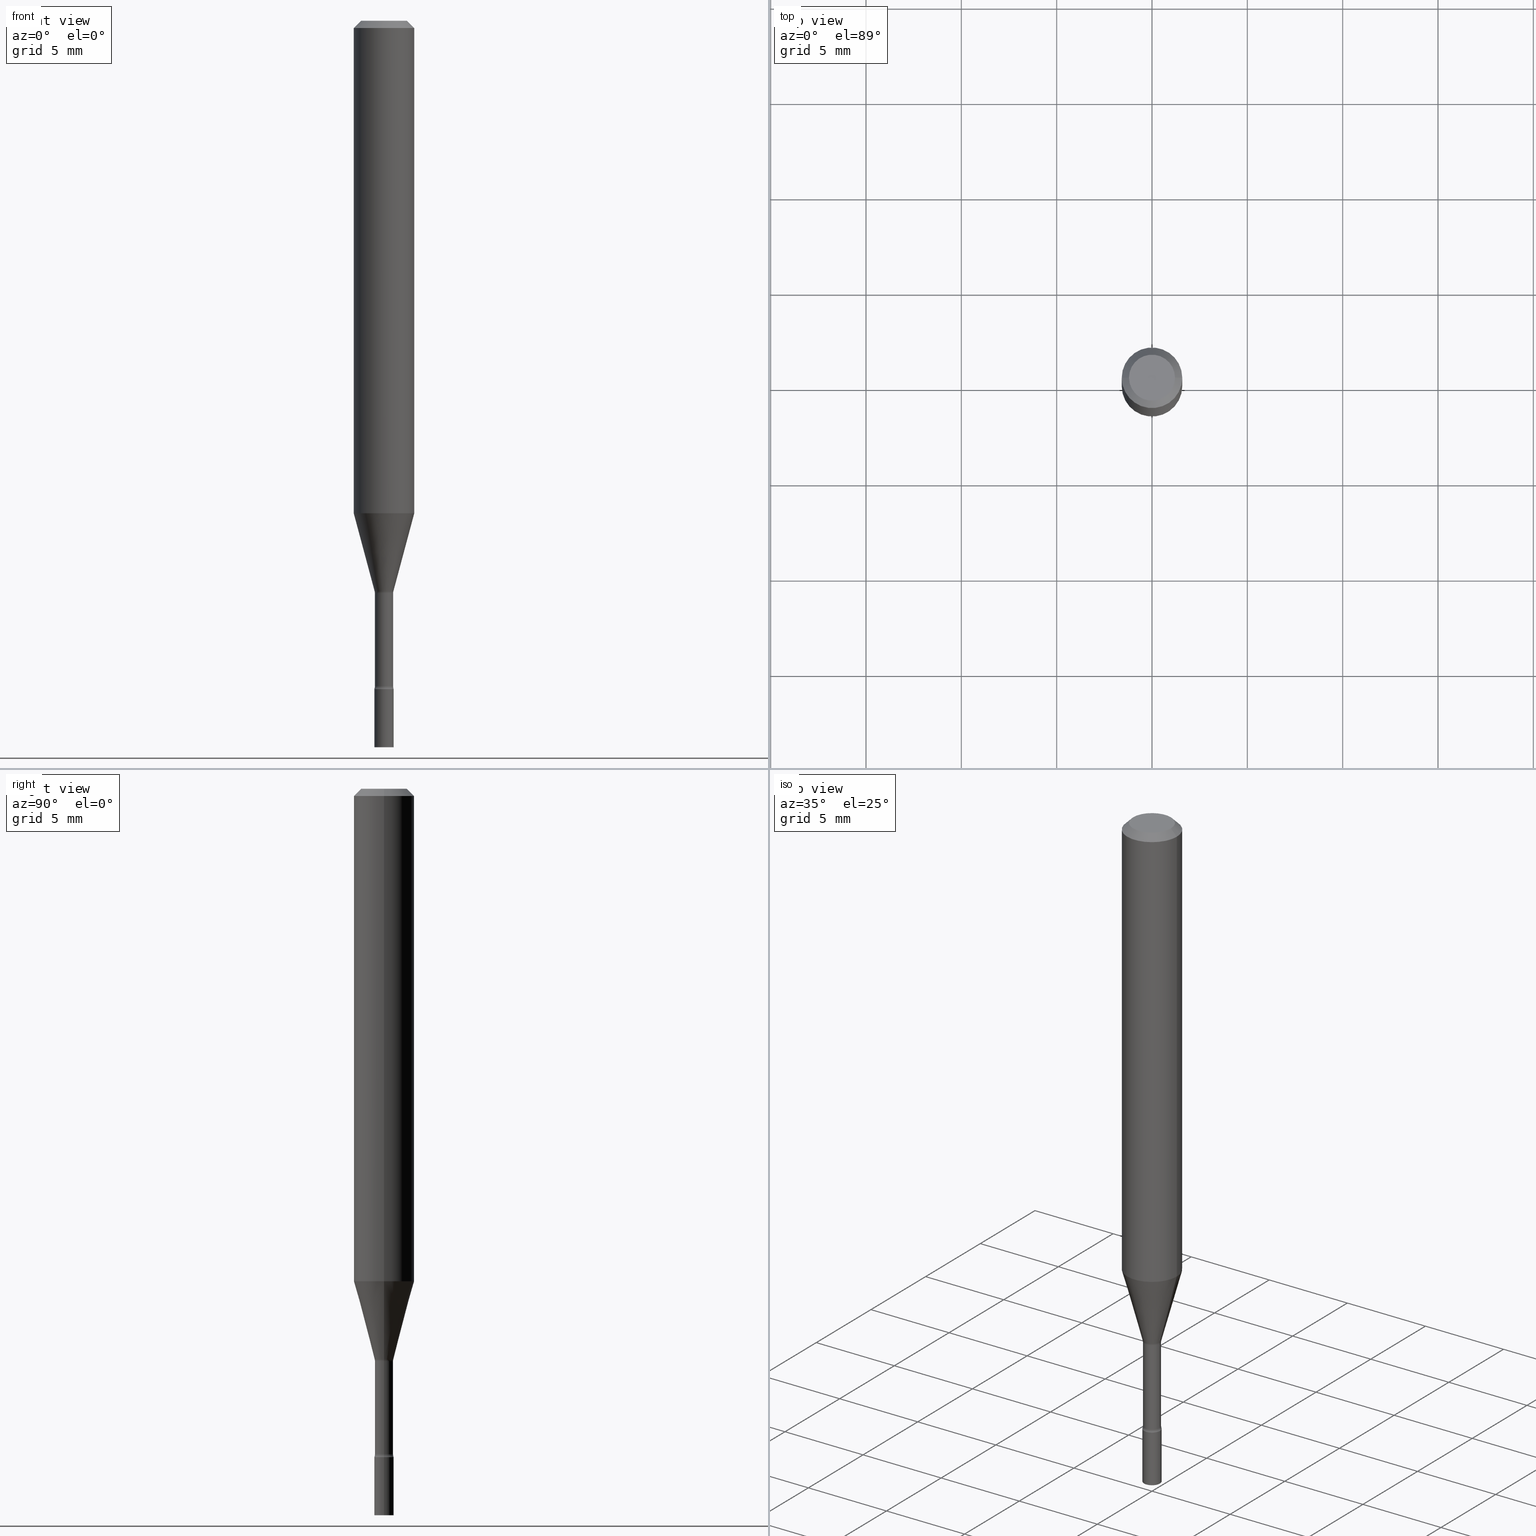
[diagram: canonical four-view strip — front | top / right | iso, engineering-drawing reading convention]
A machine part, canonical four-view strip (front | top / right | iso — engineering-drawing reading convention). The complete STEP part file that produces these views, byte-faithful:
ISO-10303-21;
HEADER;
FILE_DESCRIPTION (( 'STEP AP203' ),
    '1' );
FILE_NAME ('09367.STEP',
    '2024-03-08T23:24:10',
    ( '' ),
    ( '' ),
    'SwSTEP 2.0',
    'SolidWorks 2023',
    '' );
FILE_SCHEMA (( 'CONFIG_CONTROL_DESIGN' ));
ENDSEC;

DATA;
#1 = CIRCLE ( 'NONE', #288, 0.06250000000000000000 ) ;
#2 = DIRECTION ( 'NONE',  ( 1.000000000000000000, -6.982962677686266711E-15, 4.876176775795935793E-29 ) ) ;
#3 = ORIENTED_EDGE ( 'NONE', *, *, #30, .F. ) ;
#4 = CARTESIAN_POINT ( 'NONE',  ( 7.070806723891919892E-46, -1.009523804376275185E-31, -2.891391092786900313E-17 ) ) ;
#5 = ORIENTED_EDGE ( 'NONE', *, *, #302, .F. ) ;
#6 = CARTESIAN_POINT ( 'NONE',  ( -0.02000000000000000042, 1.421085471520200401E-16, -9.837870180509812545E-31 ) ) ;
#7 = ORIENTED_EDGE ( 'NONE', *, *, #395, .F. ) ;
#8 = CIRCLE ( 'NONE', #176, 0.01931111260566394788 ) ;
#9 = EDGE_LOOP ( 'NONE', ( #22, #372, #327, #79 ) ) ;
#10 = CARTESIAN_POINT ( 'NONE',  ( 3.374746952535488593E-29, -4.818244247603541543E-15, -1.380000000000000115 ) ) ;
#11 = ORIENTED_EDGE ( 'NONE', *, *, #88, .F. ) ;
#12 = DIRECTION ( 'NONE',  ( 1.000000000000000000, 0.000000000000000000, 0.000000000000000000 ) ) ;
#13 = DIRECTION ( 'NONE',  ( 2.445468806185136597E-29, -3.491481338843145583E-15, -1.000000000000000000 ) ) ;
#14 = CARTESIAN_POINT ( 'NONE',  ( 0.000000000000000000, 0.000000000000000000, 0.000000000000000000 ) ) ;
#15 = CC_DESIGN_PERSON_AND_ORGANIZATION_ASSIGNMENT ( #340, #259, ( #247 ) ) ;
#16 = DIRECTION ( 'NONE',  ( 1.000000000000000000, -6.982962677686267499E-15, 4.883557194083112901E-29 ) ) ;
#17 = CIRCLE ( 'NONE', #252, 0.02000000000000000042 ) ;
#18 = AXIS2_PLACEMENT_3D ( 'NONE', #437, #121, #155 ) ;
#19 = CARTESIAN_POINT ( 'NONE',  ( 2.486820166796024310E-29, -3.550520122549371978E-15, -1.016909379709240557 ) ) ;
#20 = CALENDAR_DATE ( 2024, 8, 3 ) ;
#21 = DIRECTION ( 'NONE',  ( 1.000000000000000000, -6.982962677686265922E-15, 4.876176775795935793E-29 ) ) ;
#22 = ORIENTED_EDGE ( 'NONE', *, *, #86, .T. ) ;
#23 = DATE_AND_TIME ( #103, #128 ) ;
#24 = CARTESIAN_POINT ( 'NONE',  ( -0.06250000000000000000, 3.840629472727443437E-16, -0.01500000000000003067 ) ) ;
#25 = AXIS2_PLACEMENT_3D ( 'NONE', #300, #222, #385 ) ;
#26 = LOCAL_TIME ( 18, 24, 10.00000000000000000, #460 ) ;
#27 = CARTESIAN_POINT ( 'NONE',  ( 2.880988463921384240E-29, -4.113287985421300432E-15, -1.178092501787273427 ) ) ;
#28 = DIRECTION ( 'NONE',  ( 1.000000000000000000, -6.982962677686258822E-15, 4.883557194083109538E-29 ) ) ;
#29 = EDGE_CURVE ( 'NONE', #240, #361, #310, .T. ) ;
#30 = EDGE_CURVE ( 'NONE', #38, #234, #160, .T. ) ;
#31 = DIRECTION ( 'NONE',  ( 1.000000000000000000, -6.982962677686258822E-15, 4.883557194083109538E-29 ) ) ;
#32 = ADVANCED_FACE ( 'NONE', ( #366 ), #89, .F. ) ;
#33 = DIRECTION ( 'NONE',  ( -2.445468806185136597E-29, 3.491481338843145583E-15, 1.000000000000000000 ) ) ;
#34 = VERTEX_POINT ( 'NONE', #284 ) ;
#35 = DIRECTION ( 'NONE',  ( -2.445468806185136597E-29, 3.491481338843145583E-15, 1.000000000000000000 ) ) ;
#36 = VERTEX_POINT ( 'NONE', #291 ) ;
#37 = CARTESIAN_POINT ( 'NONE',  ( -0.03380000000000000365, -3.886679468726075206E-15, -1.181974787463810905 ) ) ;
#38 = VERTEX_POINT ( 'NONE', #162 ) ;
#39 = AXIS2_PLACEMENT_3D ( 'NONE', #492, #96, #129 ) ;
#40 = CIRCLE ( 'NONE', #465, 0.02000000000000000042 ) ;
#41 = CARTESIAN_POINT ( 'NONE',  ( -0.02000000000000000042, -4.885624580782109696E-15, -1.500000000000000222 ) ) ;
#42 = ORIENTED_EDGE ( 'NONE', *, *, #187, .F. ) ;
#43 = APPLICATION_PROTOCOL_DEFINITION ( 'international standard', 'config_control_design', 1994, #416 ) ;
#44 = ADVANCED_FACE ( 'NONE', ( #56 ), #169, .F. ) ;
#45 = VERTEX_POINT ( 'NONE', #87 ) ;
#46 = MANIFOLD_SOLID_BREP ( 'Body-Move/Copy2[2]', #472 ) ;
#47 = CARTESIAN_POINT ( 'NONE',  ( 0.000000000000000000, 0.000000000000000000, 0.000000000000000000 ) ) ;
#48 = AXIS2_PLACEMENT_3D ( 'NONE', #27, #132, #293 ) ;
#49 = DIRECTION ( 'NONE',  ( 1.000000000000000000, -6.982962677686284065E-15, 0.000000000000000000 ) ) ;
#50 = DIRECTION ( 'NONE',  ( 1.000000000000000000, -6.982962677686274599E-15, 0.000000000000000000 ) ) ;
#51 = CARTESIAN_POINT ( 'NONE',  ( 2.890482472440056423E-29, -4.126842913412989440E-15, -1.181974787463810905 ) ) ;
#52 = CC_DESIGN_PERSON_AND_ORGANIZATION_ASSIGNMENT ( #204, #493, ( #275 ) ) ;
#53 = DIRECTION ( 'NONE',  ( -2.445468806185136597E-29, 3.491481338843145583E-15, 1.000000000000000000 ) ) ;
#54 = ORIENTED_EDGE ( 'NONE', *, *, #448, .T. ) ;
#55 = EDGE_CURVE ( 'NONE', #196, #266, #520, .T. ) ;
#56 = FACE_OUTER_BOUND ( 'NONE', #110, .T. ) ;
#57 = CIRCLE ( 'NONE', #72, 0.06250000000000000000 ) ;
#58 = CC_DESIGN_APPROVAL ( #177, ( #184 ) ) ;
#59 = CYLINDRICAL_SURFACE ( 'NONE', #362, 0.02000000000000000042 ) ;
#60 = PERSON_AND_ORGANIZATION_ROLE ( 'creator' ) ;
#61 = CARTESIAN_POINT ( 'NONE',  ( 3.360370590718575552E-29, -4.797718613059662933E-15, -1.374121224617320003 ) ) ;
#62 = DIRECTION ( 'NONE',  ( -2.445468806185136877E-29, 3.491481338843145188E-15, 1.000000000000000000 ) ) ;
#63 = CONICAL_SURFACE ( 'NONE', #48, 0.01931111260566394788, 0.2617993877991500740 ) ;
#64 = CIRCLE ( 'NONE', #203, 0.01499999999999998557 ) ;
#65 = ADVANCED_FACE ( 'NONE', ( #450 ), #205, .T. ) ;
#66 = DATE_TIME_ROLE ( 'classification_date' ) ;
#67 = CARTESIAN_POINT ( 'NONE',  ( -0.06250000000000000000, -1.357356961465947110E-15, -0.01500000000000003067 ) ) ;
#68 = CARTESIAN_POINT ( 'NONE',  ( 2.880988463921384240E-29, -4.113287985421300432E-15, -1.178092501787273427 ) ) ;
#69 = PRODUCT_DEFINITION_SHAPE ( 'NONE', 'NONE',  #358 ) ;
#70 = CARTESIAN_POINT ( 'NONE',  ( 0.06250000000000000000, -4.811533449433680977E-16, -0.01500000000000003067 ) ) ;
#71 = EDGE_LOOP ( 'NONE', ( #410, #152 ) ) ;
#72 = AXIS2_PLACEMENT_3D ( 'NONE', #507, #298, #135 ) ;
#73 = VECTOR ( 'NONE', #369, 39.37007874015748143 ) ;
#74 = DIRECTION ( 'NONE',  ( -2.445468806185136597E-29, 3.491481338843145583E-15, 1.000000000000000000 ) ) ;
#75 = ORIENTED_EDGE ( 'NONE', *, *, #173, .T. ) ;
#76 = CARTESIAN_POINT ( 'NONE',  ( -0.01880000000000000421, -4.328698728913427470E-15, -1.181974787463810905 ) ) ;
#77 = EDGE_LOOP ( 'NONE', ( #359, #477, #54, #200 ) ) ;
#78 = CARTESIAN_POINT ( 'NONE',  ( 3.360370590718575552E-29, -4.797718613059662933E-15, -1.374121224617320003 ) ) ;
#79 = ORIENTED_EDGE ( 'NONE', *, *, #514, .F. ) ;
#80 = VECTOR ( 'NONE', #62, 39.37007874015748143 ) ;
#81 = DIRECTION ( 'NONE',  ( -6.982962677686266711E-15, -1.000000000000000000, 3.491481338843145583E-15 ) ) ;
#82 = ORIENTED_EDGE ( 'NONE', *, *, #351, .T. ) ;
#83 = APPROVAL ( #381, 'UNSPECIFIED' ) ;
#84 =( NAMED_UNIT ( * ) SI_UNIT ( $, .STERADIAN. ) SOLID_ANGLE_UNIT ( ) );
#85 = FACE_OUTER_BOUND ( 'NONE', #320, .T. ) ;
#86 = EDGE_CURVE ( 'NONE', #104, #234, #328, .T. ) ;
#87 = CARTESIAN_POINT ( 'NONE',  ( 0.01880000000000000768, -4.928998311400164734E-15, -1.374121224617320003 ) ) ;
#88 = EDGE_CURVE ( 'NONE', #394, #104, #287, .T. ) ;
#89 = TOROIDAL_SURFACE ( 'NONE', #378, 0.03380000000000000365, 0.01499999999999998557 ) ;
#90 = VECTOR ( 'NONE', #439, 39.37007874015747433 ) ;
#91 = CIRCLE ( 'NONE', #202, 0.04749999999999999362 ) ;
#92 = EDGE_LOOP ( 'NONE', ( #392, #117, #489, #11 ) ) ;
#93 = CIRCLE ( 'NONE', #382, 0.01499999999999998557 ) ;
#94 = DIRECTION ( 'NONE',  ( 1.000000000000000000, -6.982962677686267499E-15, 4.876176775795935232E-29 ) ) ;
#95 = EDGE_LOOP ( 'NONE', ( #75, #347, #138, #251 ) ) ;
#96 = DIRECTION ( 'NONE',  ( 2.438088387897960049E-29, -3.491481338843145188E-15, -1.000000000000000000 ) ) ;
#97 = FACE_OUTER_BOUND ( 'NONE', #316, .T. ) ;
#98 = AXIS2_PLACEMENT_3D ( 'NONE', #116, #273, #31 ) ;
#99 = VERTEX_POINT ( 'NONE', #281 ) ;
#100 = APPROVAL_DATE_TIME ( #23, #177 ) ;
#101 = DIRECTION ( 'NONE',  ( 1.000000000000000000, -6.982962677686265922E-15, 4.876176775795935793E-29 ) ) ;
#102 = CARTESIAN_POINT ( 'NONE',  ( -0.06250000000000000000, -3.106430912699309362E-15, -1.016909379709240557 ) ) ;
#103 = CALENDAR_DATE ( 2024, 8, 3 ) ;
#104 = VERTEX_POINT ( 'NONE', #441 ) ;
#105 = VECTOR ( 'NONE', #225, 39.37007874015748143 ) ;
#106 = CYLINDRICAL_SURFACE ( 'NONE', #294, 0.01880000000000000768 ) ;
#107 = FACE_OUTER_BOUND ( 'NONE', #119, .T. ) ;
#108 = ORIENTED_EDGE ( 'NONE', *, *, #411, .T. ) ;
#109 = DIRECTION ( 'NONE',  ( 1.000000000000000000, -6.982962677686266711E-15, 0.000000000000000000 ) ) ;
#110 = EDGE_LOOP ( 'NONE', ( #325, #482 ) ) ;
#111 = CIRCLE ( 'NONE', #246, 0.01500000000000001853 ) ;
#112 = AXIS2_PLACEMENT_3D ( 'NONE', #249, #401, #12 ) ;
#113 = DIRECTION ( 'NONE',  ( 1.000000000000000000, -6.982962677686273021E-15, 0.000000000000000000 ) ) ;
#114 = ADVANCED_FACE ( 'NONE', ( #85 ), #453, .T. ) ;
#115 = ORIENTED_EDGE ( 'NONE', *, *, #258, .F. ) ;
#116 = CARTESIAN_POINT ( 'NONE',  ( 3.360370590718576112E-29, -4.797718613059664510E-15, -1.374121224617320447 ) ) ;
#117 = ORIENTED_EDGE ( 'NONE', *, *, #30, .T. ) ;
#118 = CARTESIAN_POINT ( 'NONE',  ( 2.890482472440056423E-29, -4.126842913412989440E-15, -1.181974787463810905 ) ) ;
#119 = EDGE_LOOP ( 'NONE', ( #375, #156, #422, #154 ) ) ;
#120 = AXIS2_PLACEMENT_3D ( 'NONE', #47, #262, #261 ) ;
#121 = DIRECTION ( 'NONE',  ( 2.438088387897960049E-29, -3.491481338843145188E-15, -1.000000000000000000 ) ) ;
#122 = DIRECTION ( 'NONE',  ( 0.2588190451025213501, 1.565188264969621968E-15, 0.9659258262890682012 ) ) ;
#123 = ADVANCED_FACE ( 'NONE', ( #242 ), #402, .T. ) ;
#124 = LINE ( 'NONE', #285, #150 ) ;
#125 = CARTESIAN_POINT ( 'NONE',  ( 2.890482472440056423E-29, -4.126842913412989440E-15, -1.181974787463810905 ) ) ;
#126 = DIRECTION ( 'NONE',  ( 1.000000000000000000, -6.982962677686270655E-15, 0.000000000000000000 ) ) ;
#127 = CIRCLE ( 'NONE', #303, 0.02000000000000000042 ) ;
#128 = LOCAL_TIME ( 18, 24, 10.00000000000000000, #210 ) ;
#129 = DIRECTION ( 'NONE',  ( -1.000000000000000000, 6.982962677686265922E-15, -4.876176775795935793E-29 ) ) ;
#130 = CARTESIAN_POINT ( 'NONE',  ( 0.03380000000000000365, -4.362867051918784611E-15, -1.181974787463810905 ) ) ;
#131 = DIRECTION ( 'NONE',  ( 1.000000000000000000, -6.982962677686265922E-15, 4.876176775795935793E-29 ) ) ;
#132 = DIRECTION ( 'NONE',  ( -2.445468806185136597E-29, 3.491481338843145583E-15, 1.000000000000000000 ) ) ;
#133 = DIRECTION ( 'NONE',  ( -2.445468806185136597E-29, 3.491481338843145583E-15, 1.000000000000000000 ) ) ;
#134 = CONICAL_SURFACE ( 'NONE', #167, 0.06250000000000000000, 0.7853981633974483900 ) ;
#135 = DIRECTION ( 'NONE',  ( 1.000000000000000000, -6.982962677686266711E-15, 0.000000000000000000 ) ) ;
#136 = SECURITY_CLASSIFICATION_LEVEL ( 'unclassified' ) ;
#137 = CARTESIAN_POINT ( 'NONE',  ( 3.360370590718576112E-29, -4.797718613059664510E-15, -1.374121224617320447 ) ) ;
#138 = ORIENTED_EDGE ( 'NONE', *, *, #29, .F. ) ;
#139 = DIRECTION ( 'NONE',  ( -2.445468806185136597E-29, 3.491481338843145583E-15, 1.000000000000000000 ) ) ;
#140 = CIRCLE ( 'NONE', #25, 0.02000000000000000042 ) ;
#141 = DIRECTION ( 'NONE',  ( 1.000000000000000000, -6.982962677686270655E-15, 0.000000000000000000 ) ) ;
#142 = CARTESIAN_POINT ( 'NONE',  ( 0.02000000000000000736, -4.957903501157267351E-15, -1.380000000000000115 ) ) ;
#143 = EDGE_LOOP ( 'NONE', ( #207, #354, #228, #462 ) ) ;
#144 = ADVANCED_FACE ( 'NONE', ( #377 ), #412, .F. ) ;
#145 = DIRECTION ( 'NONE',  ( -2.445468806185136597E-29, 3.491481338843145583E-15, 1.000000000000000000 ) ) ;
#146 = VERTEX_POINT ( 'NONE', #67 ) ;
#147 = AXIS2_PLACEMENT_3D ( 'NONE', #438, #500, #131 ) ;
#148 = AXIS2_PLACEMENT_3D ( 'NONE', #78, #317, #348 ) ;
#149 = AXIS2_PLACEMENT_3D ( 'NONE', #271, #74, #195 ) ;
#150 = VECTOR ( 'NONE', #498, 39.37007874015748143 ) ;
#151 = CARTESIAN_POINT ( 'NONE',  ( 2.880988463921384240E-29, -4.113287985421300432E-15, -1.178092501787273427 ) ) ;
#152 = ORIENTED_EDGE ( 'NONE', *, *, #315, .F. ) ;
#153 = DIRECTION ( 'NONE',  ( 1.000000000000000000, -6.982962677686284065E-15, 0.000000000000000000 ) ) ;
#154 = ORIENTED_EDGE ( 'NONE', *, *, #457, .F. ) ;
#155 = DIRECTION ( 'NONE',  ( -1.000000000000000000, 6.982962677686265922E-15, -4.876176775795935793E-29 ) ) ;
#156 = ORIENTED_EDGE ( 'NONE', *, *, #455, .T. ) ;
#157 = AXIS2_PLACEMENT_3D ( 'NONE', #233, #81, #468 ) ;
#158 = AXIS2_PLACEMENT_3D ( 'NONE', #14, #243, #94 ) ;
#159 = APPROVAL_ROLE ( '' ) ;
#160 = LINE ( 'NONE', #208, #90 ) ;
#161 = PLANE ( 'NONE',  #18 ) ;
#162 = CARTESIAN_POINT ( 'NONE',  ( -0.01931111260566394788, -3.541252595153305287E-15, -1.178092501787273427 ) ) ;
#163 =( LENGTH_UNIT ( ) NAMED_UNIT ( * ) SI_UNIT ( $, .METRE. ) );
#164 = EDGE_CURVE ( 'NONE', #99, #146, #459, .T. ) ;
#165 = DIRECTION ( 'NONE',  ( -1.000000000000000000, 6.982962677686266711E-15, 0.000000000000000000 ) ) ;
#166 = AXIS2_PLACEMENT_3D ( 'NONE', #51, #404, #332 ) ;
#167 = AXIS2_PLACEMENT_3D ( 'NONE', #334, #214, #418 ) ;
#168 = FACE_OUTER_BOUND ( 'NONE', #436, .T. ) ;
#169 = PLANE ( 'NONE',  #147 ) ;
#170 = APPROVAL_DATE_TIME ( #342, #263 ) ;
#171 = FACE_OUTER_BOUND ( 'NONE', #143, .T. ) ;
#172 = FACE_OUTER_BOUND ( 'NONE', #516, .T. ) ;
#173 = EDGE_CURVE ( 'NONE', #45, #400, #312, .T. ) ;
#174 = CLOSED_SHELL ( 'NONE', ( #268, #491, #241, #65 ) ) ;
#175 = CARTESIAN_POINT ( 'NONE',  ( 0.02000000000000000042, -1.396592535537253145E-16, 9.752353551591871936E-31 ) ) ;
#176 = AXIS2_PLACEMENT_3D ( 'NONE', #68, #509, #386 ) ;
#177 = APPROVAL ( #213, 'UNSPECIFIED' ) ;
#178 = PERSON_AND_ORGANIZATION_ROLE ( 'creator' ) ;
#179 = DIRECTION ( 'NONE',  ( 1.000000000000000000, -6.982962677686258033E-15, 0.000000000000000000 ) ) ;
#180 = PERSON_AND_ORGANIZATION ( #330, #289 ) ;
#181 = DIRECTION ( 'NONE',  ( -1.000000000000000000, 7.105427357600982137E-15, 0.000000000000000000 ) ) ;
#182 = DIRECTION ( 'NONE',  ( -2.445468806185136597E-29, 3.491481338843145583E-15, 1.000000000000000000 ) ) ;
#183 = CIRCLE ( 'NONE', #371, 0.01931111260566394788 ) ;
#184 = PRODUCT_DEFINITION_FORMATION_WITH_SPECIFIED_SOURCE ( 'ANY', '', #275, .NOT_KNOWN. ) ;
#185 = DIRECTION ( 'NONE',  ( 1.000000000000000000, -6.982962677686284065E-15, 0.000000000000000000 ) ) ;
#186 = ORIENTED_EDGE ( 'NONE', *, *, #88, .T. ) ;
#187 = EDGE_CURVE ( 'NONE', #36, #196, #218, .T. ) ;
#188 = DIRECTION ( 'NONE',  ( -2.445468806185136597E-29, 3.491481338843145583E-15, 1.000000000000000000 ) ) ;
#189 = ORIENTED_EDGE ( 'NONE', *, *, #55, .T. ) ;
#190 = EDGE_CURVE ( 'NONE', #266, #196, #140, .T. ) ;
#191 = EDGE_CURVE ( 'NONE', #234, #146, #383, .T. ) ;
#192 = EDGE_LOOP ( 'NONE', ( #513, #339, #301, #248 ) ) ;
#193 = VECTOR ( 'NONE', #227, 39.37007874015748143 ) ;
#194 = APPROVAL_PERSON_ORGANIZATION ( #376, #177, #253 ) ;
#195 = DIRECTION ( 'NONE',  ( 1.000000000000000000, -6.982962677686267499E-15, 4.883557194083112901E-29 ) ) ;
#196 = VERTEX_POINT ( 'NONE', #220 ) ;
#197 = MECHANICAL_CONTEXT ( 'NONE', #416, 'mechanical' ) ;
#198 = EDGE_LOOP ( 'NONE', ( #269, #82 ) ) ;
#199 = PERSON_AND_ORGANIZATION ( #330, #289 ) ;
#200 = ORIENTED_EDGE ( 'NONE', *, *, #408, .F. ) ;
#201 = EDGE_CURVE ( 'NONE', #400, #519, #111, .T. ) ;
#202 = AXIS2_PLACEMENT_3D ( 'NONE', #397, #515, #481 ) ;
#203 = AXIS2_PLACEMENT_3D ( 'NONE', #130, #409, #50 ) ;
#204 = PERSON_AND_ORGANIZATION ( #330, #289 ) ;
#205 = PLANE ( 'NONE',  #39 ) ;
#206 =( CONVERSION_BASED_UNIT ( 'INCH', #445 ) LENGTH_UNIT ( ) NAMED_UNIT ( #212 ) );
#207 = ORIENTED_EDGE ( 'NONE', *, *, #423, .F. ) ;
#208 = CARTESIAN_POINT ( 'NONE',  ( -0.01931111260566394788, -3.976074277607302002E-15, -1.178092501787273427 ) ) ;
#209 = CIRCLE ( 'NONE', #278, 0.01880000000000000421 ) ;
#210 = COORDINATED_UNIVERSAL_TIME_OFFSET ( 5, 0, .BEHIND. ) ;
#211 = ORIENTED_EDGE ( 'NONE', *, *, #232, .F. ) ;
#212 = DIMENSIONAL_EXPONENTS ( 1.000000000000000000, 0.000000000000000000, 0.000000000000000000, 0.000000000000000000, 0.000000000000000000, 0.000000000000000000, 0.000000000000000000 ) ;
#213 = APPROVAL_STATUS ( 'not_yet_approved' ) ;
#214 = DIRECTION ( 'NONE',  ( 2.445468806185136597E-29, -3.491481338843145583E-15, -1.000000000000000000 ) ) ;
#215 = ADVANCED_FACE ( 'NONE', ( #338 ), #106, .T. ) ;
#216 = MANIFOLD_SOLID_BREP ( 'Body-Move/Copy2[1]', #174 ) ;
#217 = APPROVAL_DATE_TIME ( #413, #83 ) ;
#218 = LINE ( 'NONE', #175, #329 ) ;
#219 = APPROVAL_ROLE ( '' ) ;
#220 = CARTESIAN_POINT ( 'NONE',  ( 0.02000000000000000042, -4.957903501157267351E-15, -1.380000000000000115 ) ) ;
#221 = CALENDAR_DATE ( 2024, 8, 3 ) ;
#222 = DIRECTION ( 'NONE',  ( -2.445468806185136597E-29, 3.491481338843145583E-15, 1.000000000000000000 ) ) ;
#223 = ORIENTED_EDGE ( 'NONE', *, *, #514, .T. ) ;
#224 = EDGE_CURVE ( 'NONE', #38, #394, #8, .T. ) ;
#225 = DIRECTION ( 'NONE',  ( -2.445468806185136877E-29, 3.491481338843145188E-15, 1.000000000000000000 ) ) ;
#226 = CC_DESIGN_PERSON_AND_ORGANIZATION_ASSIGNMENT ( #466, #178, ( #184 ) ) ;
#227 = DIRECTION ( 'NONE',  ( 0.7071067811865475727, -7.319954787623256045E-15, -0.7071067811865474617 ) ) ;
#228 = ORIENTED_EDGE ( 'NONE', *, *, #164, .T. ) ;
#229 = APPROVAL_PERSON_ORGANIZATION ( #199, #263, #159 ) ;
#230 = DIRECTION ( 'NONE',  ( 1.000000000000000000, -6.982962677686273021E-15, 0.000000000000000000 ) ) ;
#231 = ORIENTED_EDGE ( 'NONE', *, *, #455, .F. ) ;
#232 = EDGE_CURVE ( 'NONE', #146, #34, #57, .T. ) ;
#233 = CARTESIAN_POINT ( 'NONE',  ( 0.03380000000000002447, -5.033742751565459681E-15, -1.374121224617320447 ) ) ;
#234 = VERTEX_POINT ( 'NONE', #102 ) ;
#235 = FACE_OUTER_BOUND ( 'NONE', #77, .T. ) ;
#236 = ORIENTED_EDGE ( 'NONE', *, *, #190, .F. ) ;
#237 = AXIS2_PLACEMENT_3D ( 'NONE', #456, #133, #101 ) ;
#238 = CIRCLE ( 'NONE', #475, 0.02000000000000000042 ) ;
#239 = DIRECTION ( 'NONE',  ( 1.000000000000000000, -6.982962677686267499E-15, 4.876681293081646444E-29 ) ) ;
#240 = VERTEX_POINT ( 'NONE', #414 ) ;
#241 = ADVANCED_FACE ( 'NONE', ( #257 ), #59, .T. ) ;
#242 = FACE_OUTER_BOUND ( 'NONE', #9, .T. ) ;
#243 = DIRECTION ( 'NONE',  ( -2.445468806185136597E-29, 3.491481338843145583E-15, 1.000000000000000000 ) ) ;
#244 = DIRECTION ( 'NONE',  ( -2.445468806185136597E-29, 3.491481338843145583E-15, 1.000000000000000000 ) ) ;
#245 = ADVANCED_FACE ( 'NONE', ( #171 ), #134, .T. ) ;
#246 = AXIS2_PLACEMENT_3D ( 'NONE', #374, #467, #181 ) ;
#247 = SECURITY_CLASSIFICATION ( '', '', #136 ) ;
#248 = ORIENTED_EDGE ( 'NONE', *, *, #283, .T. ) ;
#249 = CARTESIAN_POINT ( 'NONE',  ( 0.000000000000000000, 0.000000000000000000, 0.000000000000000000 ) ) ;
#250 = EDGE_LOOP ( 'NONE', ( #255, #471, #318, #236 ) ) ;
#251 = ORIENTED_EDGE ( 'NONE', *, *, #286, .F. ) ;
#252 = AXIS2_PLACEMENT_3D ( 'NONE', #256, #417, #153 ) ;
#253 = APPROVAL_ROLE ( '' ) ;
#254 = CYLINDRICAL_SURFACE ( 'NONE', #237, 0.02000000000000000042 ) ;
#255 = ORIENTED_EDGE ( 'NONE', *, *, #496, .F. ) ;
#256 = CARTESIAN_POINT ( 'NONE',  ( 3.374746952535488593E-29, -4.818244247603541543E-15, -1.380000000000000115 ) ) ;
#257 = FACE_OUTER_BOUND ( 'NONE', #250, .T. ) ;
#258 = EDGE_CURVE ( 'NONE', #400, #361, #333, .T. ) ;
#259 = PERSON_AND_ORGANIZATION_ROLE ( 'classification_officer' ) ;
#260 = AXIS2_PLACEMENT_3D ( 'NONE', #388, #145, #109 ) ;
#261 = DIRECTION ( 'NONE',  ( 1.000000000000000000, -6.982962677686266711E-15, 4.876176775795935793E-29 ) ) ;
#262 = DIRECTION ( 'NONE',  ( -2.445468806185136597E-29, 3.491481338843145583E-15, 1.000000000000000000 ) ) ;
#263 = APPROVAL ( #319, 'UNSPECIFIED' ) ;
#264 = ADVANCED_FACE ( 'NONE', ( #172 ), #63, .T. ) ;
#265 = LINE ( 'NONE', #70, #193 ) ;
#266 = VERTEX_POINT ( 'NONE', #452 ) ;
#267 = CARTESIAN_POINT ( 'NONE',  ( 3.374746952535488593E-29, -4.818244247603541543E-15, -1.380000000000000115 ) ) ;
#268 = ADVANCED_FACE ( 'NONE', ( #97 ), #254, .T. ) ;
#269 = ORIENTED_EDGE ( 'NONE', *, *, #335, .T. ) ;
#270 = VECTOR ( 'NONE', #304, 39.37007874015748143 ) ;
#271 = CARTESIAN_POINT ( 'NONE',  ( 2.890482472440056423E-29, -4.126842913412989440E-15, -1.181974787463810905 ) ) ;
#272 = ORIENTED_EDGE ( 'NONE', *, *, #286, .T. ) ;
#273 = DIRECTION ( 'NONE',  ( -2.445468806185136597E-29, 3.491481338843145583E-15, 1.000000000000000000 ) ) ;
#274 = ORIENTED_EDGE ( 'NONE', *, *, #351, .F. ) ;
#275 = PRODUCT ( '09367', '09367', '', ( #197 ) ) ;
#276 = DIRECTION ( 'NONE',  ( 1.000000000000000000, -6.982962677686259611E-15, 0.000000000000000000 ) ) ;
#277 = ORIENTED_EDGE ( 'NONE', *, *, #191, .F. ) ;
#278 = AXIS2_PLACEMENT_3D ( 'NONE', #118, #470, #276 ) ;
#279 = APPROVAL_PERSON_ORGANIZATION ( #180, #83, #219 ) ;
#280 = LINE ( 'NONE', #6, #73 ) ;
#281 = CARTESIAN_POINT ( 'NONE',  ( -0.04749999999999999362, 3.578768372314209027E-16, -2.891391092787141902E-17 ) ) ;
#282 = DIRECTION ( 'NONE',  ( 1.000000000000000000, -6.982962677686284065E-15, 0.000000000000000000 ) ) ;
#283 = EDGE_CURVE ( 'NONE', #431, #519, #17, .T. ) ;
#284 = CARTESIAN_POINT ( 'NONE',  ( 0.06250000000000000000, -4.888073874380389458E-16, -0.01500000000000003067 ) ) ;
#285 = CARTESIAN_POINT ( 'NONE',  ( 0.06250000000000000000, -4.364351673553916694E-16, 3.047610484872459871E-30 ) ) ;
#286 = EDGE_CURVE ( 'NONE', #45, #240, #478, .T. ) ;
#287 = LINE ( 'NONE', #447, #463 ) ;
#288 = AXIS2_PLACEMENT_3D ( 'NONE', #344, #512, #141 ) ;
#289 = ORGANIZATION ( 'UNSPECIFIED', 'UNSPECIFIED', '' ) ;
#290 = FACE_OUTER_BOUND ( 'NONE', #95, .T. ) ;
#291 = CARTESIAN_POINT ( 'NONE',  ( 0.02000000000000000042, -5.376881261818443984E-15, -1.500000000000000222 ) ) ;
#292 = DIRECTION ( 'NONE',  ( -2.445468806185136597E-29, 3.491481338843145583E-15, 1.000000000000000000 ) ) ;
#293 = DIRECTION ( 'NONE',  ( 1.000000000000000000, -6.982962677686273021E-15, 0.000000000000000000 ) ) ;
#294 = AXIS2_PLACEMENT_3D ( 'NONE', #343, #505, #424 ) ;
#295 = COORDINATED_UNIVERSAL_TIME_OFFSET ( 5, 0, .BEHIND. ) ;
#296 = LOCAL_TIME ( 18, 24, 10.00000000000000000, #295 ) ;
#297 = DIRECTION ( 'NONE',  ( -2.445468806185136597E-29, 3.491481338843145583E-15, 1.000000000000000000 ) ) ;
#298 = DIRECTION ( 'NONE',  ( -2.445468806185136597E-29, 3.491481338843145583E-15, 1.000000000000000000 ) ) ;
#299 = DATE_TIME_ROLE ( 'creation_date' ) ;
#300 = CARTESIAN_POINT ( 'NONE',  ( 3.374746952535488593E-29, -4.818244247603541543E-15, -1.380000000000000115 ) ) ;
#301 = ORIENTED_EDGE ( 'NONE', *, *, #408, .T. ) ;
#302 = EDGE_CURVE ( 'NONE', #394, #38, #183, .T. ) ;
#303 = AXIS2_PLACEMENT_3D ( 'NONE', #432, #33, #185 ) ;
#304 = DIRECTION ( 'NONE',  ( -0.7071067811865475727, 2.468850131082257455E-15, -0.7071067811865474617 ) ) ;
#305 = CC_DESIGN_SECURITY_CLASSIFICATION ( #247, ( #184 ) ) ;
#306 = FACE_OUTER_BOUND ( 'NONE', #390, .T. ) ;
#307 = CARTESIAN_POINT ( 'NONE',  ( 0.01931111260566394788, -4.248136764011248280E-15, -1.178092501787273427 ) ) ;
#308 = ORIENTED_EDGE ( 'NONE', *, *, #55, .F. ) ;
#309 = CARTESIAN_POINT ( 'NONE',  ( 2.880988463921384240E-29, -4.113287985421300432E-15, -1.178092501787273427 ) ) ;
#310 = CIRCLE ( 'NONE', #166, 0.01880000000000000421 ) ;
#311 = EDGE_LOOP ( 'NONE', ( #115, #326, #272, #7 ) ) ;
#312 = CIRCLE ( 'NONE', #321, 0.01880000000000000768 ) ;
#313 = LOCAL_TIME ( 18, 24, 10.00000000000000000, #506 ) ;
#314 = DIRECTION ( 'NONE',  ( -2.445468806185136597E-29, 3.491481338843145583E-15, 1.000000000000000000 ) ) ;
#315 = EDGE_CURVE ( 'NONE', #349, #36, #127, .T. ) ;
#316 = EDGE_LOOP ( 'NONE', ( #458, #370, #308, #42 ) ) ;
#317 = DIRECTION ( 'NONE',  ( -2.445468806185136597E-29, 3.491481338843145583E-15, 1.000000000000000000 ) ) ;
#318 = ORIENTED_EDGE ( 'NONE', *, *, #187, .T. ) ;
#319 = APPROVAL_STATUS ( 'not_yet_approved' ) ;
#320 = EDGE_LOOP ( 'NONE', ( #274, #345, #356, #429 ) ) ;
#321 = AXIS2_PLACEMENT_3D ( 'NONE', #61, #421, #179 ) ;
#322 = CC_DESIGN_PERSON_AND_ORGANIZATION_ASSIGNMENT ( #508, #60, ( #358 ) ) ;
#323 = ADVANCED_FACE ( 'NONE', ( #425 ), #419, .T. ) ;
#324 = COORDINATED_UNIVERSAL_TIME_OFFSET ( 5, 0, .BEHIND. ) ;
#325 = ORIENTED_EDGE ( 'NONE', *, *, #283, .F. ) ;
#326 = ORIENTED_EDGE ( 'NONE', *, *, #391, .T. ) ;
#327 = ORIENTED_EDGE ( 'NONE', *, *, #443, .F. ) ;
#328 = CIRCLE ( 'NONE', #396, 0.06250000000000000000 ) ;
#329 = VECTOR ( 'NONE', #461, 39.37007874015748143 ) ;
#330 = PERSON ( 'UNSPECIFIED', 'UNSPECIFIED', 'UNSPECIFIED', ('UNSPECIFIED'), ('UNSPECIFIED'), ('UNSPECIFIED') ) ;
#331 = DIRECTION ( 'NONE',  ( -2.438088387897960049E-29, 3.491481338843145188E-15, 1.000000000000000000 ) ) ;
#332 = DIRECTION ( 'NONE',  ( 1.000000000000000000, -6.982962677686259611E-15, 0.000000000000000000 ) ) ;
#333 = LINE ( 'NONE', #502, #80 ) ;
#334 = CARTESIAN_POINT ( 'NONE',  ( 3.668203209277712094E-31, -5.237222008264728876E-17, -0.01500000000000003067 ) ) ;
#335 = EDGE_CURVE ( 'NONE', #99, #433, #427, .T. ) ;
#336 = AXIS2_PLACEMENT_3D ( 'NONE', #309, #35, #113 ) ;
#337 = AXIS2_PLACEMENT_3D ( 'NONE', #10, #331, #403 ) ;
#338 = FACE_OUTER_BOUND ( 'NONE', #311, .T. ) ;
#339 = ORIENTED_EDGE ( 'NONE', *, *, #173, .F. ) ;
#340 = PERSON_AND_ORGANIZATION ( #330, #289 ) ;
#341 = CARTESIAN_POINT ( 'NONE',  ( -0.06250000000000000000, 4.440892098500626162E-16, -3.074334431409316114E-30 ) ) ;
#342 = DATE_AND_TIME ( #488, #511 ) ;
#343 = CARTESIAN_POINT ( 'NONE',  ( 0.000000000000000000, 0.000000000000000000, 0.000000000000000000 ) ) ;
#344 = CARTESIAN_POINT ( 'NONE',  ( 2.486820166796024310E-29, -3.550520122549371978E-15, -1.016909379709240557 ) ) ;
#345 = ORIENTED_EDGE ( 'NONE', *, *, #423, .T. ) ;
#346 = CARTESIAN_POINT ( 'NONE',  ( 0.01880000000000000768, -1.312796983405018755E-16, 9.167212338496362317E-31 ) ) ;
#347 = ORIENTED_EDGE ( 'NONE', *, *, #258, .T. ) ;
#348 = DIRECTION ( 'NONE',  ( 1.000000000000000000, -6.982962677686258033E-15, 0.000000000000000000 ) ) ;
#349 = VERTEX_POINT ( 'NONE', #41 ) ;
#350 = APPLICATION_CONTEXT ( 'configuration controlled 3d designs of mechanical parts and assemblies' ) ;
#351 = EDGE_CURVE ( 'NONE', #433, #99, #91, .T. ) ;
#352 = AXIS2_PLACEMENT_3D ( 'NONE', #494, #244, #49 ) ;
#353 = DIRECTION ( 'NONE',  ( 7.105427357601001859E-15, 1.000000000000000000, -3.491481338843145583E-15 ) ) ;
#354 = ORIENTED_EDGE ( 'NONE', *, *, #335, .F. ) ;
#355 = CYLINDRICAL_SURFACE ( 'NONE', #510, 0.06250000000000000000 ) ;
#356 = ORIENTED_EDGE ( 'NONE', *, *, #443, .T. ) ;
#357 = APPLICATION_PROTOCOL_DEFINITION ( 'international standard', 'config_control_design', 1994, #350 ) ;
#358 = PRODUCT_DEFINITION ( 'UNKNOWN', '', #184, #499 ) ;
#359 = ORIENTED_EDGE ( 'NONE', *, *, #391, .F. ) ;
#360 = CARTESIAN_POINT ( 'NONE',  ( 3.668203209277704895E-29, -5.237222008264718177E-15, -1.500000000000000222 ) ) ;
#361 = VERTEX_POINT ( 'NONE', #76 ) ;
#362 = AXIS2_PLACEMENT_3D ( 'NONE', #503, #297, #21 ) ;
#363 = ADVANCED_FACE ( 'NONE', ( #235 ), #380, .F. ) ;
#364 = CYLINDRICAL_SURFACE ( 'NONE', #158, 0.01880000000000000768 ) ;
#365 = UNCERTAINTY_MEASURE_WITH_UNIT (LENGTH_MEASURE( 1.000000000000000082E-05 ), #206, 'distance_accuracy_value', 'NONE');
#366 = FACE_OUTER_BOUND ( 'NONE', #480, .T. ) ;
#367 = PLANE ( 'NONE',  #337 ) ;
#368 = ORIENTED_EDGE ( 'NONE', *, *, #29, .T. ) ;
#369 = DIRECTION ( 'NONE',  ( -2.445468806185136877E-29, 3.491481338843145188E-15, 1.000000000000000000 ) ) ;
#370 = ORIENTED_EDGE ( 'NONE', *, *, #496, .T. ) ;
#371 = AXIS2_PLACEMENT_3D ( 'NONE', #151, #182, #230 ) ;
#372 = ORIENTED_EDGE ( 'NONE', *, *, #191, .T. ) ;
#373 = DATE_AND_TIME ( #420, #26 ) ;
#374 = CARTESIAN_POINT ( 'NONE',  ( -0.03380000000000002447, -4.557555168372750276E-15, -1.374121224617320447 ) ) ;
#375 = ORIENTED_EDGE ( 'NONE', *, *, #224, .F. ) ;
#376 = PERSON_AND_ORGANIZATION ( #330, #289 ) ;
#377 = FACE_OUTER_BOUND ( 'NONE', #192, .T. ) ;
#378 = AXIS2_PLACEMENT_3D ( 'NONE', #125, #292, #16 ) ;
#379 = ADVANCED_FACE ( 'NONE', ( #107 ), #442, .F. ) ;
#380 = TOROIDAL_SURFACE ( 'NONE', #98, 0.03380000000000002447, 0.01500000000000001679 ) ;
#381 = APPROVAL_STATUS ( 'not_yet_approved' ) ;
#382 = AXIS2_PLACEMENT_3D ( 'NONE', #37, #353, #484 ) ;
#383 = LINE ( 'NONE', #341, #105 ) ;
#384 = CC_DESIGN_PERSON_AND_ORGANIZATION_ASSIGNMENT ( #454, #451, ( #184 ) ) ;
#385 = DIRECTION ( 'NONE',  ( 1.000000000000000000, -6.982962677686284065E-15, 0.000000000000000000 ) ) ;
#386 = DIRECTION ( 'NONE',  ( 1.000000000000000000, -6.982962677686273021E-15, 0.000000000000000000 ) ) ;
#387 = CIRCLE ( 'NONE', #157, 0.01500000000000001853 ) ;
#388 = CARTESIAN_POINT ( 'NONE',  ( 3.668203209277712094E-31, -5.237222008264728876E-17, -0.01500000000000003067 ) ) ;
#389 = ADVANCED_FACE ( 'NONE', ( #306 ), #355, .T. ) ;
#390 = EDGE_LOOP ( 'NONE', ( #277, #108, #223, #211 ) ) ;
#391 = EDGE_CURVE ( 'NONE', #400, #45, #444, .T. ) ;
#392 = ORIENTED_EDGE ( 'NONE', *, *, #302, .T. ) ;
#393 = DIRECTION ( 'NONE',  ( 1.000000000000000000, -6.982962677686284065E-15, 0.000000000000000000 ) ) ;
#394 = VERTEX_POINT ( 'NONE', #307 ) ;
#395 = EDGE_CURVE ( 'NONE', #361, #240, #209, .T. ) ;
#396 = AXIS2_PLACEMENT_3D ( 'NONE', #19, #486, #126 ) ;
#397 = CARTESIAN_POINT ( 'NONE',  ( 7.070806723891919892E-46, -1.009523804376275185E-31, -2.891391092786900313E-17 ) ) ;
#398 = AXIS2_PLACEMENT_3D ( 'NONE', #407, #13, #165 ) ;
#399 = ORIENTED_EDGE ( 'NONE', *, *, #224, .T. ) ;
#400 = VERTEX_POINT ( 'NONE', #435 ) ;
#401 = DIRECTION ( 'NONE',  ( 0.000000000000000000, 0.000000000000000000, 1.000000000000000000 ) ) ;
#402 = CYLINDRICAL_SURFACE ( 'NONE', #120, 0.06250000000000000000 ) ;
#403 = DIRECTION ( 'NONE',  ( 1.000000000000000000, -6.982962677686265922E-15, 4.876176775795935793E-29 ) ) ;
#404 = DIRECTION ( 'NONE',  ( -2.445468806185136597E-29, 3.491481338843145583E-15, 1.000000000000000000 ) ) ;
#405 = CC_DESIGN_DATE_AND_TIME_ASSIGNMENT ( #373, #66, ( #247 ) ) ;
#406 = CC_DESIGN_APPROVAL ( #263, ( #358 ) ) ;
#407 = CARTESIAN_POINT ( 'NONE',  ( 3.668203209277712094E-31, -5.237222008264728876E-17, -0.01500000000000003067 ) ) ;
#408 = EDGE_CURVE ( 'NONE', #45, #431, #387, .T. ) ;
#409 = DIRECTION ( 'NONE',  ( -6.982962677686266711E-15, -1.000000000000000000, 3.491481338843145583E-15 ) ) ;
#410 = ORIENTED_EDGE ( 'NONE', *, *, #476, .F. ) ;
#411 = EDGE_CURVE ( 'NONE', #234, #104, #1, .T. ) ;
#412 = TOROIDAL_SURFACE ( 'NONE', #485, 0.03380000000000002447, 0.01500000000000001679 ) ;
#413 = DATE_AND_TIME ( #221, #313 ) ;
#414 = CARTESIAN_POINT ( 'NONE',  ( 0.01880000000000000421, -4.258122611753491242E-15, -1.181974787463810905 ) ) ;
#415 = ORIENTED_EDGE ( 'NONE', *, *, #411, .F. ) ;
#416 = APPLICATION_CONTEXT ( 'configuration controlled 3d designs of mechanical parts and assemblies' ) ;
#417 = DIRECTION ( 'NONE',  ( -2.445468806185136597E-29, 3.491481338843145583E-15, 1.000000000000000000 ) ) ;
#418 = DIRECTION ( 'NONE',  ( -1.000000000000000000, 6.982962677686266711E-15, 0.000000000000000000 ) ) ;
#419 = CONICAL_SURFACE ( 'NONE', #336, 0.01931111260566394788, 0.2617993877991500740 ) ;
#420 = CALENDAR_DATE ( 2024, 8, 3 ) ;
#421 = DIRECTION ( 'NONE',  ( -2.445468806185136597E-29, 3.491481338843145583E-15, 1.000000000000000000 ) ) ;
#422 = ORIENTED_EDGE ( 'NONE', *, *, #395, .T. ) ;
#423 = EDGE_CURVE ( 'NONE', #433, #34, #265, .T. ) ;
#424 = DIRECTION ( 'NONE',  ( 1.000000000000000000, -6.982962677686267499E-15, 4.876176775795935232E-29 ) ) ;
#425 = FACE_OUTER_BOUND ( 'NONE', #92, .T. ) ;
#426 = ORIENTED_EDGE ( 'NONE', *, *, #457, .T. ) ;
#427 = CIRCLE ( 'NONE', #473, 0.04749999999999999362 ) ;
#428 = DIRECTION ( 'NONE',  ( -2.445468806185136597E-29, 3.491481338843145583E-15, 1.000000000000000000 ) ) ;
#429 = ORIENTED_EDGE ( 'NONE', *, *, #164, .F. ) ;
#430 = CARTESIAN_POINT ( 'NONE',  ( 0.000000000000000000, 0.000000000000000000, 0.000000000000000000 ) ) ;
#431 = VERTEX_POINT ( 'NONE', #142 ) ;
#432 = CARTESIAN_POINT ( 'NONE',  ( 3.668203209277704895E-29, -5.237222008264718177E-15, -1.500000000000000222 ) ) ;
#433 = VERTEX_POINT ( 'NONE', #518 ) ;
#434 = PRODUCT_RELATED_PRODUCT_CATEGORY ( 'detail', '', ( #275 ) ) ;
#435 = CARTESIAN_POINT ( 'NONE',  ( -0.01880000000000000768, -4.670136139594141812E-15, -1.374121224617320003 ) ) ;
#436 = EDGE_LOOP ( 'NONE', ( #189, #469 ) ) ;
#437 = CARTESIAN_POINT ( 'NONE',  ( 3.316907271900976096E-16, 0.04749999999999999362, -1.803023190589839165E-16 ) ) ;
#438 = CARTESIAN_POINT ( 'NONE',  ( 1.396592535537590876E-16, 0.01999999999999518135, -1.380000000000000115 ) ) ;
#439 = DIRECTION ( 'NONE',  ( -0.2588190451025213501, 5.211531920934551042E-15, 0.9659258262890682012 ) ) ;
#440 = CARTESIAN_POINT ( 'NONE',  ( -0.02000000000000000736, -4.676135700451519802E-15, -1.380000000000000115 ) ) ;
#441 = CARTESIAN_POINT ( 'NONE',  ( 0.06250000000000000000, -3.986955289904763647E-15, -1.016909379709240557 ) ) ;
#442 = TOROIDAL_SURFACE ( 'NONE', #149, 0.03380000000000000365, 0.01499999999999998557 ) ;
#443 = EDGE_CURVE ( 'NONE', #34, #146, #495, .T. ) ;
#444 = CIRCLE ( 'NONE', #148, 0.01880000000000000768 ) ;
#445 = LENGTH_MEASURE_WITH_UNIT ( LENGTH_MEASURE( 0.02539999999999999897 ), #163 );
#446 = ADVANCED_BREP_SHAPE_REPRESENTATION ( '09367', ( #216, #46, #112 ), #487 ) ;
#447 = CARTESIAN_POINT ( 'NONE',  ( 0.01931111260566394788, -4.248136764011248280E-15, -1.178092501787273427 ) ) ;
#448 = EDGE_CURVE ( 'NONE', #519, #431, #40, .T. ) ;
#449 =( NAMED_UNIT ( * ) PLANE_ANGLE_UNIT ( ) SI_UNIT ( $, .RADIAN. ) );
#450 = FACE_OUTER_BOUND ( 'NONE', #71, .T. ) ;
#451 = PERSON_AND_ORGANIZATION_ROLE ( 'design_supplier' ) ;
#452 = CARTESIAN_POINT ( 'NONE',  ( -0.02000000000000000042, -4.885624580782109696E-15, -1.380000000000000115 ) ) ;
#453 = CONICAL_SURFACE ( 'NONE', #398, 0.06250000000000000000, 0.7853981633974483900 ) ;
#454 = PERSON_AND_ORGANIZATION ( #330, #289 ) ;
#455 = EDGE_CURVE ( 'NONE', #38, #361, #93, .T. ) ;
#456 = CARTESIAN_POINT ( 'NONE',  ( 0.000000000000000000, 0.000000000000000000, 0.000000000000000000 ) ) ;
#457 = EDGE_CURVE ( 'NONE', #394, #240, #64, .T. ) ;
#458 = ORIENTED_EDGE ( 'NONE', *, *, #476, .T. ) ;
#459 = LINE ( 'NONE', #24, #270 ) ;
#460 = COORDINATED_UNIVERSAL_TIME_OFFSET ( 5, 0, .BEHIND. ) ;
#461 = DIRECTION ( 'NONE',  ( -2.445468806185136877E-29, 3.491481338843145188E-15, 1.000000000000000000 ) ) ;
#462 = ORIENTED_EDGE ( 'NONE', *, *, #232, .T. ) ;
#463 = VECTOR ( 'NONE', #122, 39.37007874015747433 ) ;
#464 = VECTOR ( 'NONE', #474, 39.37007874015748143 ) ;
#465 = AXIS2_PLACEMENT_3D ( 'NONE', #267, #428, #393 ) ;
#466 = PERSON_AND_ORGANIZATION ( #330, #289 ) ;
#467 = DIRECTION ( 'NONE',  ( 7.105427357601001859E-15, 1.000000000000000000, -3.491481338843145583E-15 ) ) ;
#468 = DIRECTION ( 'NONE',  ( 1.000000000000000000, -6.982962677686259611E-15, 0.000000000000000000 ) ) ;
#469 = ORIENTED_EDGE ( 'NONE', *, *, #190, .T. ) ;
#470 = DIRECTION ( 'NONE',  ( -2.445468806185136597E-29, 3.491481338843145583E-15, 1.000000000000000000 ) ) ;
#471 = ORIENTED_EDGE ( 'NONE', *, *, #315, .T. ) ;
#472 = CLOSED_SHELL ( 'NONE', ( #379, #483, #363, #114, #123, #323, #264, #389, #245, #517, #44, #144, #215, #32 ) ) ;
#473 = AXIS2_PLACEMENT_3D ( 'NONE', #4, #314, #239 ) ;
#474 = DIRECTION ( 'NONE',  ( -2.445468806185136877E-29, 3.491481338843145188E-15, 1.000000000000000000 ) ) ;
#475 = AXIS2_PLACEMENT_3D ( 'NONE', #360, #53, #282 ) ;
#476 = EDGE_CURVE ( 'NONE', #36, #349, #238, .T. ) ;
#477 = ORIENTED_EDGE ( 'NONE', *, *, #201, .T. ) ;
#478 = LINE ( 'NONE', #346, #464 ) ;
#479 = CC_DESIGN_DATE_AND_TIME_ASSIGNMENT ( #504, #299, ( #358 ) ) ;
#480 = EDGE_LOOP ( 'NONE', ( #231, #5, #426, #368 ) ) ;
#481 = DIRECTION ( 'NONE',  ( 1.000000000000000000, -6.982962677686267499E-15, 4.876681293081646444E-29 ) ) ;
#482 = ORIENTED_EDGE ( 'NONE', *, *, #448, .F. ) ;
#483 = ADVANCED_FACE ( 'NONE', ( #290 ), #364, .T. ) ;
#484 = DIRECTION ( 'NONE',  ( -1.000000000000000000, 7.105427357600997914E-15, 0.000000000000000000 ) ) ;
#485 = AXIS2_PLACEMENT_3D ( 'NONE', #137, #139, #28 ) ;
#486 = DIRECTION ( 'NONE',  ( -2.445468806185136597E-29, 3.491481338843145583E-15, 1.000000000000000000 ) ) ;
#487 =( GEOMETRIC_REPRESENTATION_CONTEXT ( 3 ) GLOBAL_UNCERTAINTY_ASSIGNED_CONTEXT ( ( #365 ) ) GLOBAL_UNIT_ASSIGNED_CONTEXT ( ( #206, #449, #84 ) ) REPRESENTATION_CONTEXT ( 'NONE', 'WORKASPACE' ) );
#488 = CALENDAR_DATE ( 2024, 8, 3 ) ;
#489 = ORIENTED_EDGE ( 'NONE', *, *, #86, .F. ) ;
#490 = FACE_OUTER_BOUND ( 'NONE', #198, .T. ) ;
#491 = ADVANCED_FACE ( 'NONE', ( #168 ), #367, .T. ) ;
#492 = CARTESIAN_POINT ( 'NONE',  ( 1.396592535537619965E-16, 0.01999999999999476155, -1.500000000000000222 ) ) ;
#493 = PERSON_AND_ORGANIZATION_ROLE ( 'design_owner' ) ;
#494 = CARTESIAN_POINT ( 'NONE',  ( 3.374746952535488593E-29, -4.818244247603541543E-15, -1.380000000000000115 ) ) ;
#495 = CIRCLE ( 'NONE', #260, 0.06250000000000000000 ) ;
#496 = EDGE_CURVE ( 'NONE', #349, #266, #280, .T. ) ;
#497 = CC_DESIGN_APPROVAL ( #83, ( #247 ) ) ;
#498 = DIRECTION ( 'NONE',  ( -2.445468806185136877E-29, 3.491481338843145188E-15, 1.000000000000000000 ) ) ;
#499 = DESIGN_CONTEXT ( 'detailed design', #350, 'design' ) ;
#500 = DIRECTION ( 'NONE',  ( -2.438088387897960049E-29, 3.491481338843145188E-15, 1.000000000000000000 ) ) ;
#501 = SHAPE_DEFINITION_REPRESENTATION ( #69, #446 ) ;
#502 = CARTESIAN_POINT ( 'NONE',  ( -0.01880000000000000768, 1.335820343228988895E-16, -9.247597969679226384E-31 ) ) ;
#503 = CARTESIAN_POINT ( 'NONE',  ( 0.000000000000000000, 0.000000000000000000, 0.000000000000000000 ) ) ;
#504 = DATE_AND_TIME ( #20, #296 ) ;
#505 = DIRECTION ( 'NONE',  ( -2.445468806185136597E-29, 3.491481338843145583E-15, 1.000000000000000000 ) ) ;
#506 = COORDINATED_UNIVERSAL_TIME_OFFSET ( 5, 0, .BEHIND. ) ;
#507 = CARTESIAN_POINT ( 'NONE',  ( 3.668203209277712094E-31, -5.237222008264728876E-17, -0.01500000000000003067 ) ) ;
#508 = PERSON_AND_ORGANIZATION ( #330, #289 ) ;
#509 = DIRECTION ( 'NONE',  ( -2.445468806185136597E-29, 3.491481338843145583E-15, 1.000000000000000000 ) ) ;
#510 = AXIS2_PLACEMENT_3D ( 'NONE', #430, #188, #2 ) ;
#511 = LOCAL_TIME ( 18, 24, 10.00000000000000000, #324 ) ;
#512 = DIRECTION ( 'NONE',  ( -2.445468806185136597E-29, 3.491481338843145583E-15, 1.000000000000000000 ) ) ;
#513 = ORIENTED_EDGE ( 'NONE', *, *, #201, .F. ) ;
#514 = EDGE_CURVE ( 'NONE', #104, #34, #124, .T. ) ;
#515 = DIRECTION ( 'NONE',  ( -2.445468806185136597E-29, 3.491481338843145583E-15, 1.000000000000000000 ) ) ;
#516 = EDGE_LOOP ( 'NONE', ( #3, #399, #186, #415 ) ) ;
#517 = ADVANCED_FACE ( 'NONE', ( #490 ), #161, .F. ) ;
#518 = CARTESIAN_POINT ( 'NONE',  ( 0.04749999999999999362, -4.035134999187579609E-16, -2.891391092786643317E-17 ) ) ;
#519 = VERTEX_POINT ( 'NONE', #440 ) ;
#520 = CIRCLE ( 'NONE', #352, 0.02000000000000000042 ) ;
ENDSEC;
END-ISO-10303-21;
